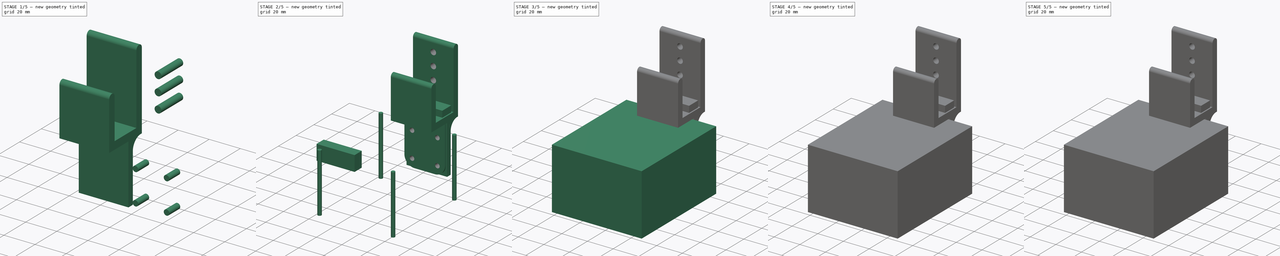
[diagram: build sequence overview — one tinted view per stage of 5, left to right]
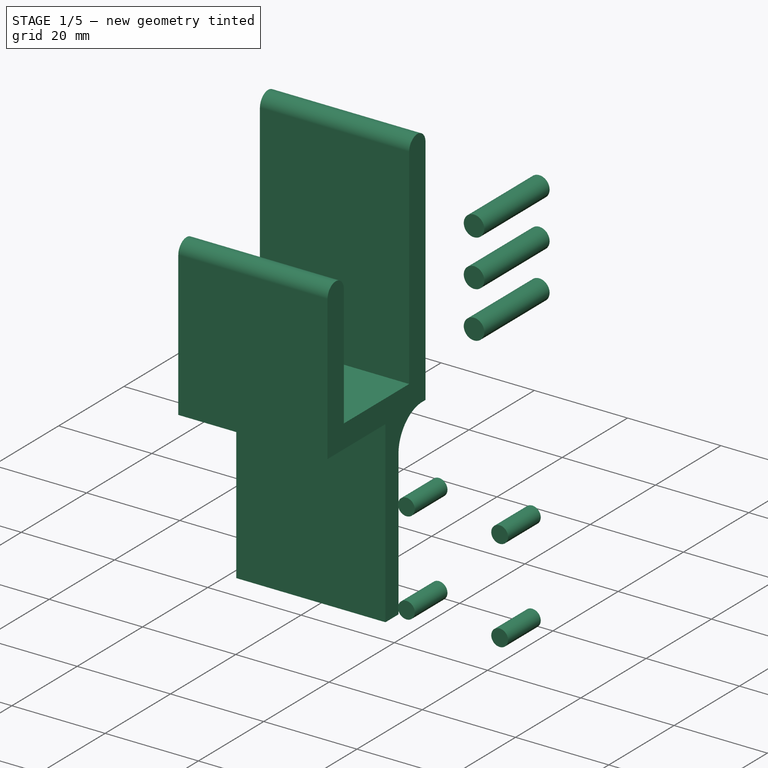
[diagram: stage 1 of 5 — iso view after this stage's code; geometry added in this stage tinted green]
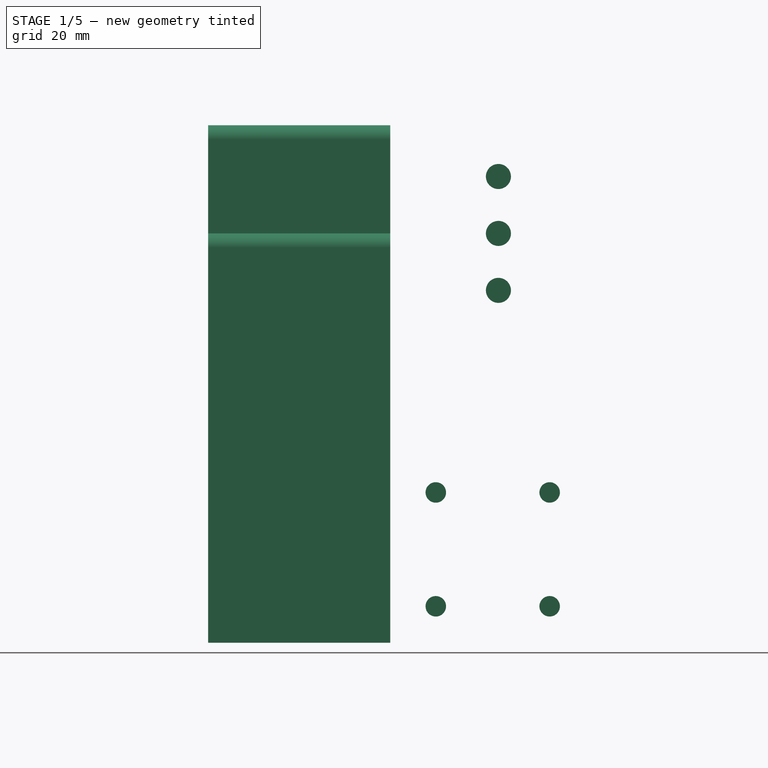
[diagram: stage 1 of 5 — front view after this stage's code; geometry added in this stage tinted green]
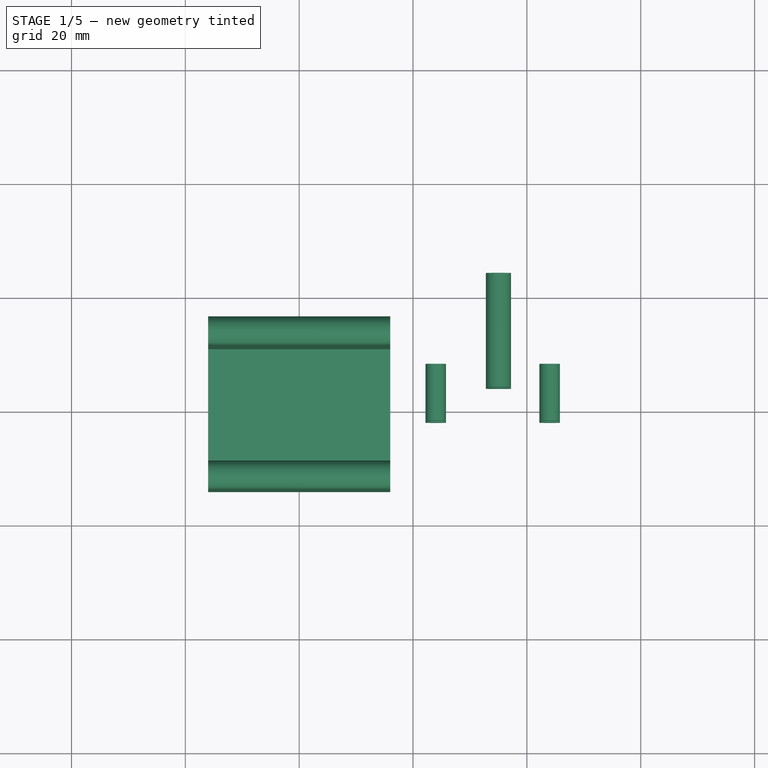
[diagram: stage 1 of 5 — top view after this stage's code; geometry added in this stage tinted green]
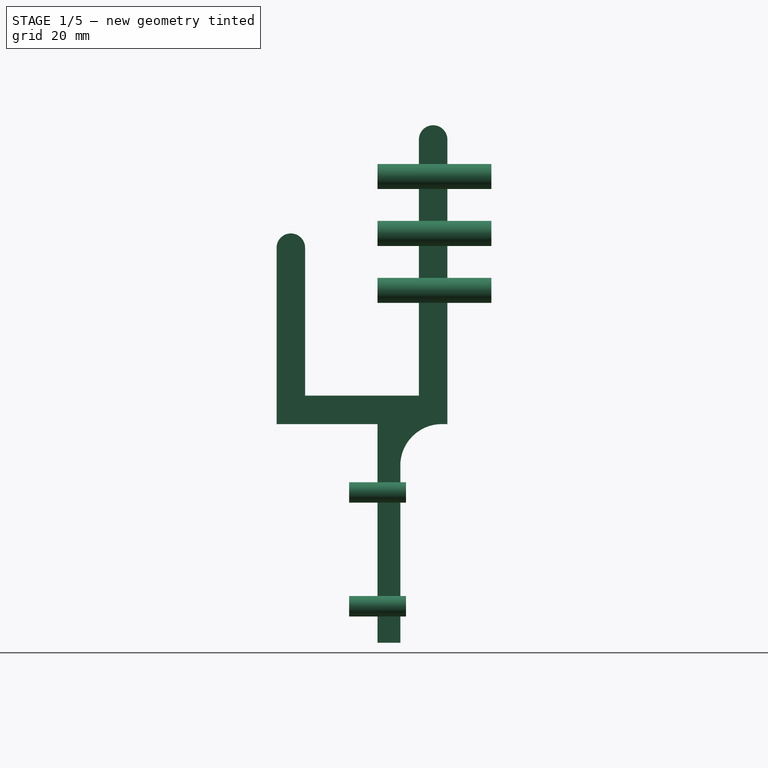
[diagram: stage 1 of 5 — right view after this stage's code; geometry added in this stage tinted green]
FCSTD DOCUMENT  (FreeCAD 0.19R23578 (Git))
Label: box
License: All rights reserved
LicenseURL: http://en.wikipedia.org/wiki/All_rights_reserved
objects: Part::Box×10, Part::Cylinder×10, Part::MultiFuse×9, Part::FeaturePython×8, Part::Cut×6, App::Part×5, Part::Feature×4, PartDesign::ShapeBinder×3, Sketcher::SketchObject×3, PartDesign::Pad×3, PartDesign::Body×3, Part::Fillet×1
note: 56 computed .brp shape members not serialized (recipe doc carries the construction recipe); baked Part::Feature solids carry a one-line shape summary decoded from their .brp

FEATURE [Part::Feature] Part003001  label="btn top cover plate"
  Placement = pos=(51.8,5,1) rot=(0,1,0;3.14159rad)
  shape: bbox 38.8 x 27 x 6.5 mm, 25 faces (baked)
FEATURE [Part::Feature] Cut001001  label="esp attachment"
  Placement = pos=(61,38.5,8) rot=(0,0,1;3.14159rad)
  shape: bbox 58 x 5 x 37.5 mm, 20 faces, 2 solids (baked)
FEATURE [Part::Feature] Part001001  label="back part001"
  shape: bbox 44 x 40 x 10 mm, 66 faces (baked)
FEATURE [Part::Box] Box  label="face plate"
  AttacherType = Attacher::AttachEngine3D
  Height = 2
  Length = 68
  Width = 79
FEATURE [Part::Box] Box005  label="back external box"
  AttacherType = Attacher::AttachEngine3D
  Height = 47.5
  Length = 70
  Placement = pos=(-1,-1,0) rot=(0,0,1;0rad)
  Width = 83
  expr: Length = <<face plate>>.Length + 2mm
  expr: Width = <<face plate>>.Width + 4mm
  expr: .Placement.Base.x = -(Length - <<face plate>>.Length) / 2
  expr: .Placement.Base.y = -(Width - <<face plate>>.Width) / 2 + 1mm
  expr: Height = <<back internal box>>.Height + 1mm
FEATURE [App::Part] Part003003  label="face part"
  Group = -> [Fusion002]
  Origin = -> Origin004
FEATURE [Part::Box] Box006  label="back internal box"
  AttacherType = Attacher::AttachEngine3D
  Height = 46.5
  Length = 68
  Width = 79
  expr: Width = <<face plate>>.Width
  expr: Length = <<face plate>>.Length
FEATURE [PartDesign::ShapeBinder] ShapeBinder002
  Support = -> [Box005]
  TraceSupport = false
FEATURE [Sketcher::SketchObject] Sketch002
  MapMode = 5
  Placement = pos=(0,0,0) rot=(0.57735,0.57735,0.57735;2.0944rad)
  Support = -> [YZ_Plane007]
  expr: Constraints[31] = <<back external box>>.Height + 0.5mm
  expr: Constraints[32] = <<back external box>>.Width
  sketch-geometry (13):
    g0: LineSegment StartX=65.2671 StartY=48 StartZ=0 EndX=83 EndY=48 EndZ=0
    g1: LineSegment StartX=83 StartY=48 StartZ=0 EndX=83 EndY=9.6 EndZ=0
    g2: LineSegment StartX=83 StartY=9.6 StartZ=0 EndX=87 EndY=9.6 EndZ=0
    g3: LineSegment StartX=87 StartY=9.6 StartZ=0 EndX=87 EndY=40.7196 EndZ=0
    g4: LineSegment StartX=94.2804 StartY=48 StartZ=0 EndX=95.2671 EndY=48 EndZ=0
    g5: LineSegment StartX=95.2671 StartY=48 StartZ=0 EndX=95.2671 EndY=98 EndZ=0
    g6: LineSegment StartX=90.2671 StartY=98 StartZ=0 EndX=90.2671 EndY=53 EndZ=0
    g7: LineSegment StartX=90.2671 StartY=53 StartZ=0 EndX=70.2671 EndY=53 EndZ=0
    g8: LineSegment StartX=70.2671 StartY=53 StartZ=0 EndX=70.2671 EndY=79 EndZ=0
    g9: LineSegment StartX=65.2671 StartY=79 StartZ=0 EndX=65.2671 EndY=48 EndZ=0
    g10: ArcOfCircle CenterX=67.7671 CenterY=79 CenterZ=0 NormalX=0 NormalY=0 NormalZ=1 AngleXU=0 Radius=2.5 StartAngle=1e-16 EndAngle=3.14159
    g11: ArcOfCircle CenterX=92.7671 CenterY=98 CenterZ=0 NormalX=0 NormalY=0 NormalZ=1 AngleXU=0 Radius=2.5 StartAngle=-9e-16 EndAngle=3.14159
    g12: ArcOfCircle CenterX=94.2804 CenterY=40.7196 CenterZ=0 NormalX=0 NormalY=0 NormalZ=1 AngleXU=0 Radius=7.28037 StartAngle=1.5708 EndAngle=3.14159
  constraints (33):
    c: Horizontal(g0)
    c: Coincident(g2,g1)
    c: Horizontal(g2)
    c: Coincident(g0,g1)
    c: Tangent(g0,g4)
    c: Coincident(g5,g4)
    c: Vertical(g5)
    c: Vertical(g6)
    c: Coincident(g7,g6)
    c: Horizontal(g7)
    c: Vertical(g8)
    c: Coincident(g9,g0)
    c: Vertical(g9)
    c: Tangent(g10,g9) = -1.5708
    c: Tangent(g10,g8) = -1.5708
    c: Tangent(g11,g5) = -1.5708
    c: Tangent(g11,g6) = -1.5708
    c: DistanceX(g7,g7) = 20
    c: DistanceY(g8,g8) = 26
    c: Coincident(g8,g7)
    c: DistanceY(g6,g6) = 45
    c: Vertical(g3)
    c: Coincident(g2,g3)
    c: Vertical(g1)
    c: DistanceX(g2,g2) = 4
    c: DistanceY(g4,g6) = 5
    c: DistanceX(g9,g8) = 5
    c: DistanceX(g6,g5) = 5
    c: Tangent(g4,g12) = 1.5708
    c: Tangent(g3,g12) = 1.5708
    c: DistanceY(g1,g1) = 38.4
    c: DistanceY(g-1,g4) = 48
    c: DistanceX(g-1,g0) = 83
FEATURE [PartDesign::Pad] Pad002
  Direction = (1,1,1)
  Length = 32
  Length2 = 100
  Midplane = true
  Placement = pos=(0,0,0) rot=(0.57735,0.57735,0.57735;2.0944rad)
  Profile = -> Sketch002
  Type = 0
FEATURE [PartDesign::Body] Body002
  Group = -> [ShapeBinder002,Sketch002,Pad002]
  Origin = -> Origin007
  Placement = pos=(35,0,0) rot=(0,0,1;0rad)
  Tip = -> Pad002
  expr: .Placement.Base.x = <<back external box>>.Length / 2
FEATURE [Part::Cylinder] Cylinder008  label="top bolt hole001"
  Angle = 360
  AttacherType = Attacher::AttachEngine3D
  Height = 10
  Radius = 1.8
FEATURE [Part::FeaturePython] Array005  label="top bolt hole array001"  # Draft array (typed FeaturePython)
  Angle = 360
  ArrayType = 0
  Axis = (0,0,1)
  Base = -> Cylinder008
  Center = (0,0,0)
  Count = 4
  ExpandArray = false
  Fuse = false
  IntervalAxis = (0,0,0)
  IntervalX = (20,0,0)
  IntervalY = (0,20,0)
  IntervalZ = (0,0,100)
  NumberCircles = 3
  NumberPolar = 5
  NumberX = 2
  NumberY = 2
  NumberZ = 1
  Placement = pos=(24,88,16) rot=(1,0,0;1.5708rad)
  PlacementList = 4 placements: [(0,0,0),(0,20,0),(20,0,0),(20,20,0)]
  RadialDistance = 50
  ScaleList = (4) [(1,1,1),(1,1,1),(1,1,1),(1,1,1)]
  Symmetry = 1
  TangentialDistance = 25
FEATURE [Part::Cylinder] Cylinder009  label="holder insert hole"
  Angle = 360
  AttacherType = Attacher::AttachEngine3D
  Height = 20
  Placement = pos=(0,0,0) rot=(1,0,0;1.5708rad)
  Radius = 2.2
FEATURE [Part::FeaturePython] Array006  label="holder insert hole array"  # Draft array (typed FeaturePython)
  Angle = 360
  ArrayType = 0
  Axis = (0,0,1)
  Base = -> Cylinder009
  Center = (0,0,0)
  Count = 3
  ExpandArray = false
  Fuse = false
  IntervalAxis = (0,0,0)
  IntervalX = (100,0,0)
  IntervalY = (0,100,0)
  IntervalZ = (0,0,10)
  NumberCircles = 3
  NumberPolar = 5
  NumberX = 1
  NumberY = 1
  NumberZ = 3
  Placement = pos=(35,103,71.5) rot=(0,0,1;0rad)
  PlacementList = 3 placements: arithmetic series from (0,0,0) step (0,0,10) to (0,0,20)
  RadialDistance = 50
  ScaleList = (3) [(1,1,1),(1,1,1),(1,1,1)]
  Symmetry = 1
  TangentialDistance = 25
  expr: .Placement.Base.z = <<back internal box>>.Height + 25mm
  expr: .Placement.Base.y = <<back external box>>.Width + 20mm
  expr: .Placement.Base.x = <<back external box>>.Length / 2
FEATURE [Part::MultiFuse] Fusion008  label="holder hole fusion"
  Shapes = -> [Array005,Array006]
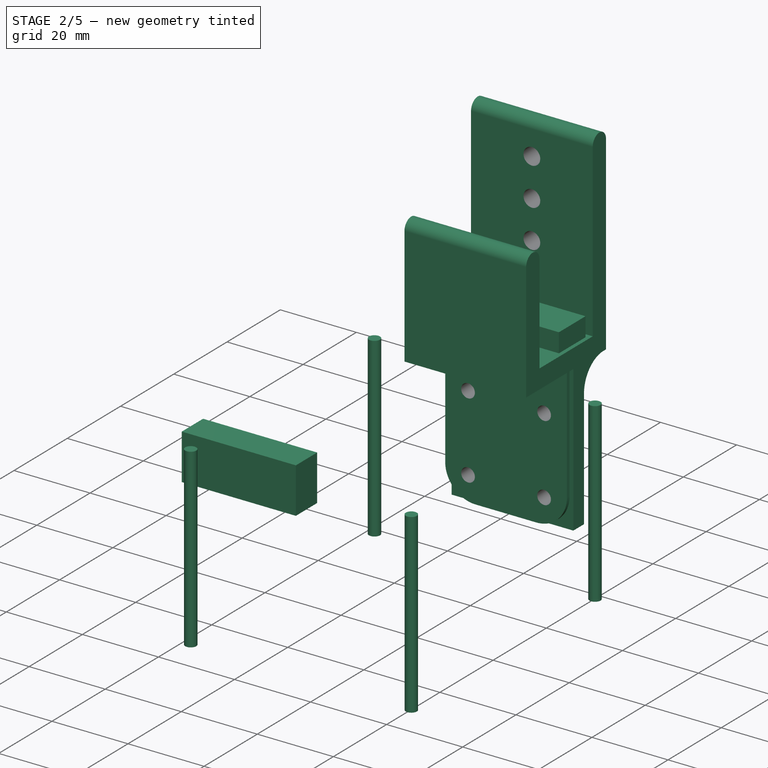
[diagram: stage 2 of 5 — iso view after this stage's code; geometry added in this stage tinted green]
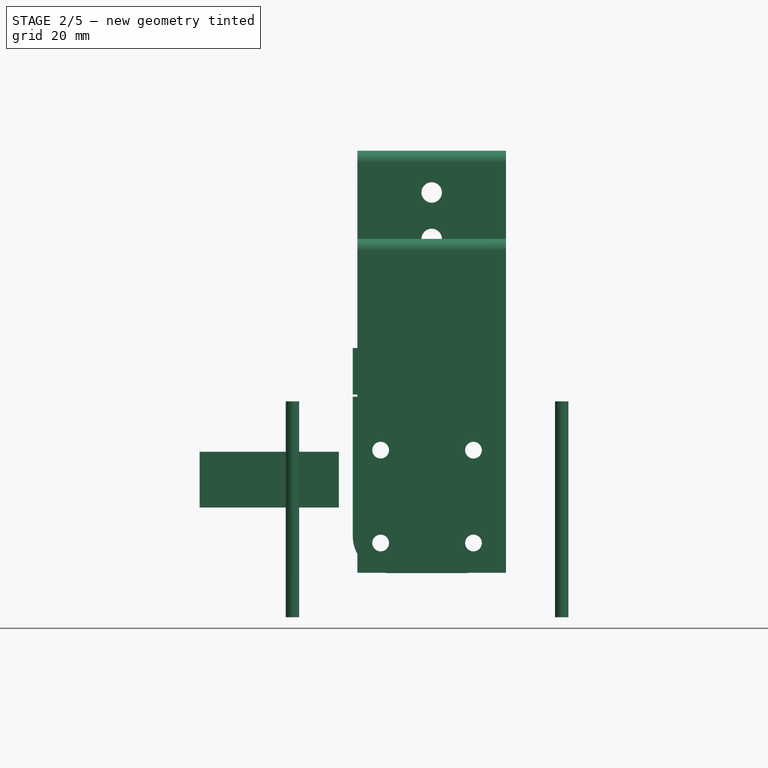
[diagram: stage 2 of 5 — front view after this stage's code; geometry added in this stage tinted green]
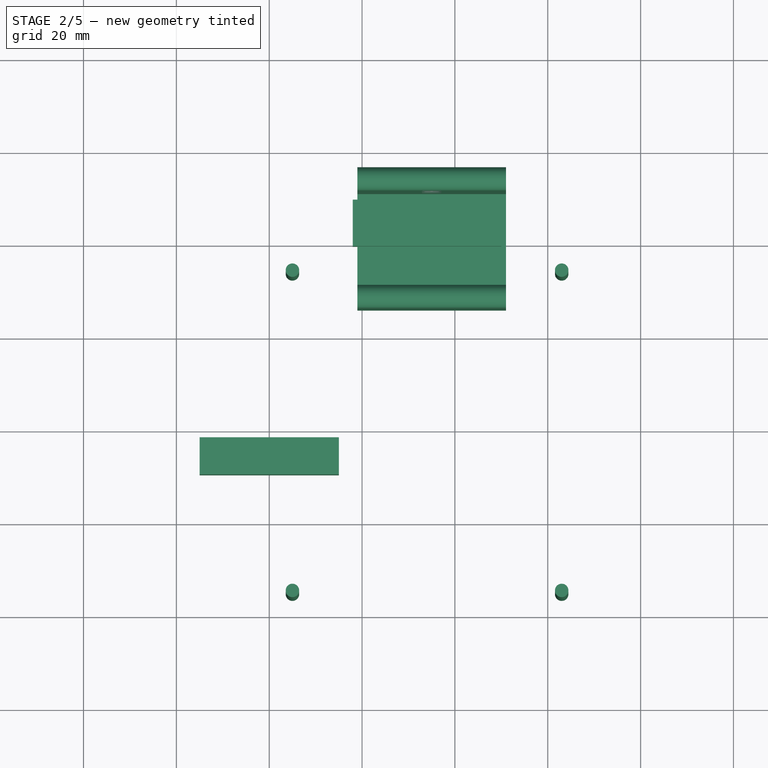
[diagram: stage 2 of 5 — top view after this stage's code; geometry added in this stage tinted green]
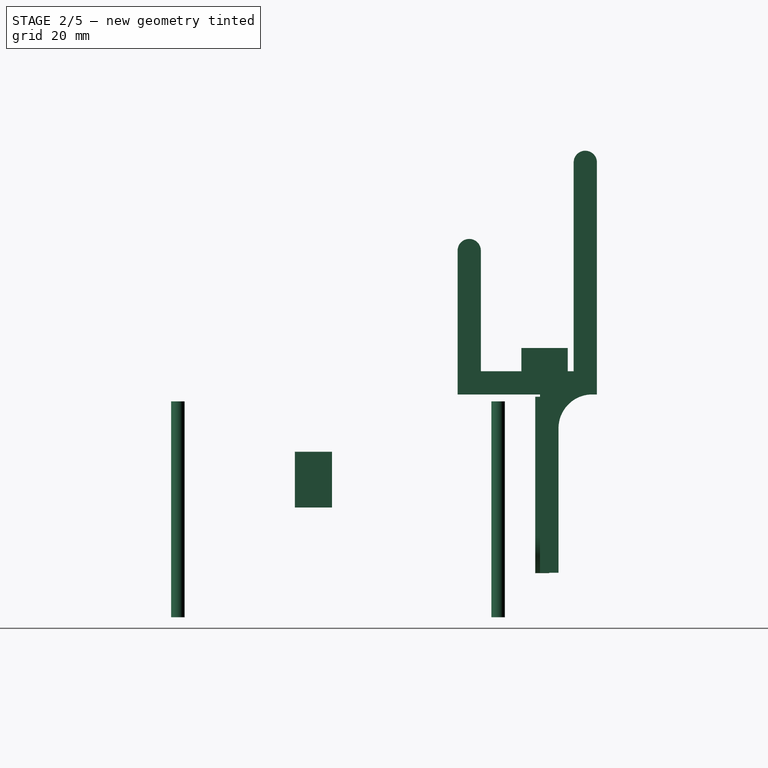
[diagram: stage 2 of 5 — right view after this stage's code; geometry added in this stage tinted green]
FEATURE [Part::Cylinder] Cylinder006  label="screw hole002"
  Angle = 360
  AttacherType = Attacher::AttachEngine3D
  Height = 46.5
  Placement = pos=(5,5,0) rot=(0,0,1;0rad)
  Radius = 1.45
  expr: Height = <<back internal box>>.Height
FEATURE [Part::FeaturePython] Array003  label="screw hole array"  # Draft array (typed FeaturePython)
  Angle = 360
  ArrayType = 0
  Axis = (0,0,1)
  Base = -> Cylinder006
  Center = (0,0,0)
  Count = 4
  ExpandArray = false
  Fuse = false
  IntervalAxis = (0,0,0)
  IntervalX = (58,0,0)
  IntervalY = (0,69,0)
  IntervalZ = (0,0,100)
  NumberCircles = 3
  NumberPolar = 5
  NumberX = 2
  NumberY = 2
  NumberZ = 1
  PlacementList = 4 placements: [(5,5,0),(5,74,0),(63,5,0),(63,74,0)]
  RadialDistance = 50
  ScaleList = (4) [(1,1,1),(1,1,1),(1,1,1),(1,1,1)]
  Symmetry = 1
  TangentialDistance = 25
  expr: .IntervalX.x = <<face plate>>.Length - <<screw hole002>>.Placement.Base.x * 2
  expr: .IntervalY.y = <<face plate>>.Width - <<screw hole002>>.Placement.Base.y * 2
FEATURE [Part::Box] Box020  label="micro usb hole"
  AttacherType = Attacher::AttachEngine3D
  Height = 8
  Length = 12
  Placement = pos=(-15,30.2,23.65) rot=(0.57735,0.57735,0.57735;4.18879rad)
  Width = 30
FEATURE [App::Part] Part003004  label="back part"
  Group = -> [Fusion007]
  Origin = -> Origin005
FEATURE [Part::Box] Box021  label="holder main cube"
  AttacherType = Attacher::AttachEngine3D
  Height = 38
  Length = 32
  Placement = pos=(18,82,9.5) rot=(0,0,1;0rad)
  Width = 3
  expr: .Placement.Base.z = <<back external box>>.Height - Height
  expr: .Placement.Base.x = (<<back internal box>>.Length - Length) / 2
FEATURE [Part::Cylinder] Cylinder007  label="top bolt hole"
  Angle = 360
  AttacherType = Attacher::AttachEngine3D
  Height = 10
  Radius = 1.8
FEATURE [Part::FeaturePython] Array004  label="top bolt hole array"  # Draft array (typed FeaturePython)
  Angle = 360
  ArrayType = 0
  Axis = (0,0,1)
  Base = -> Cylinder007
  Center = (0,0,0)
  Count = 4
  ExpandArray = false
  Fuse = false
  IntervalAxis = (0,0,0)
  IntervalX = (20,0,0)
  IntervalY = (0,20,0)
  IntervalZ = (0,0,100)
  NumberCircles = 3
  NumberPolar = 5
  NumberX = 2
  NumberY = 2
  NumberZ = 1
  Placement = pos=(24,88,16) rot=(1,0,0;1.5708rad)
  PlacementList = 4 placements: [(0,0,0),(0,20,0),(20,0,0),(20,20,0)]
  RadialDistance = 50
  ScaleList = (4) [(1,1,1),(1,1,1),(1,1,1),(1,1,1)]
  Symmetry = 1
  TangentialDistance = 25
FEATURE [Part::Fillet] Fillet
  Base = -> Box021
  Edges = 2 edges r=8: [Edge4,Edge8]
FEATURE [Part::Cut] Cut001005
  Base = -> Fillet
  Tool = -> Array004
FEATURE [Part::Box] Box022  label="Cube005"
  AttacherType = Attacher::AttachEngine3D
  Height = 10
  Length = 32
  Placement = pos=(18,79,48) rot=(0,0,1;0rad)
  Width = 10
  expr: .Placement.Base.x = <<holder main cube>>.Placement.Base.x
  expr: Length = <<holder main cube>>.Length
FEATURE [Part::Cut] Cut001006  label="holder cut"
  Base = -> Body002
  Tool = -> Fusion008
FEATURE [App::Part] Part003005  label="holder part"
  Group = -> [Body002,Cut001006,Array005,Cylinder008,Array006]
  Origin = -> Origin006
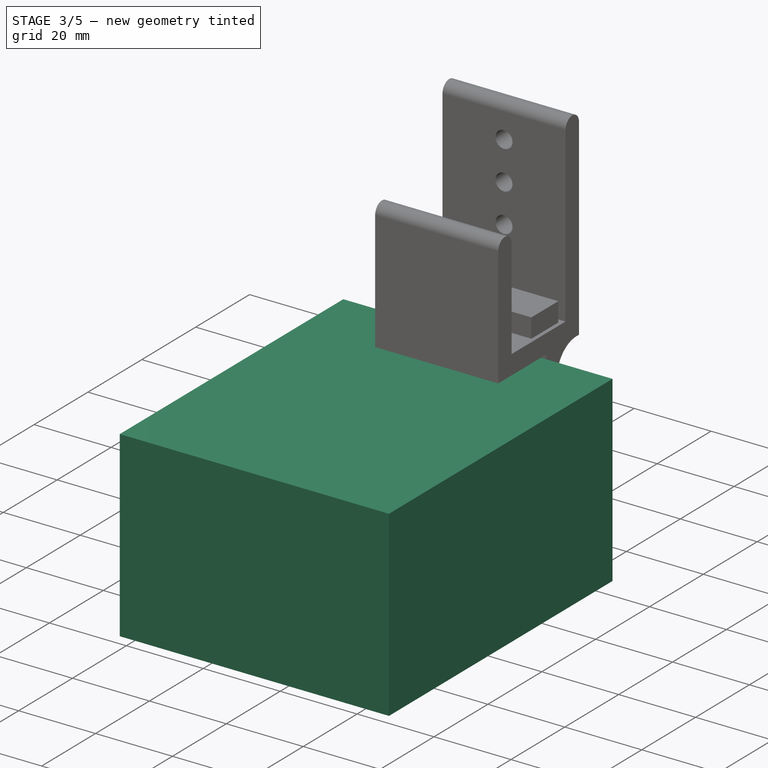
[diagram: stage 3 of 5 — iso view after this stage's code; geometry added in this stage tinted green]
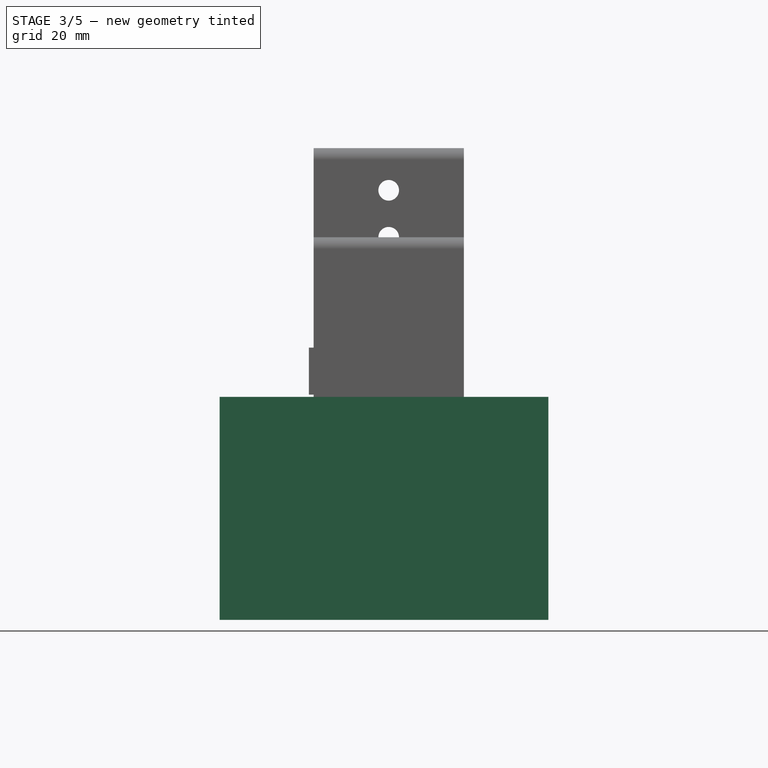
[diagram: stage 3 of 5 — front view after this stage's code; geometry added in this stage tinted green]
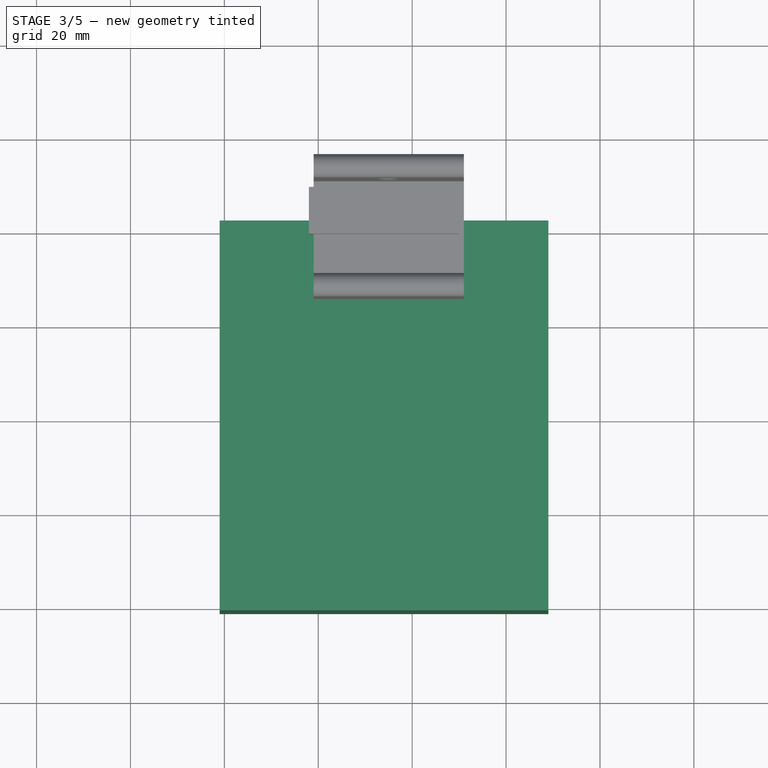
[diagram: stage 3 of 5 — top view after this stage's code; geometry added in this stage tinted green]
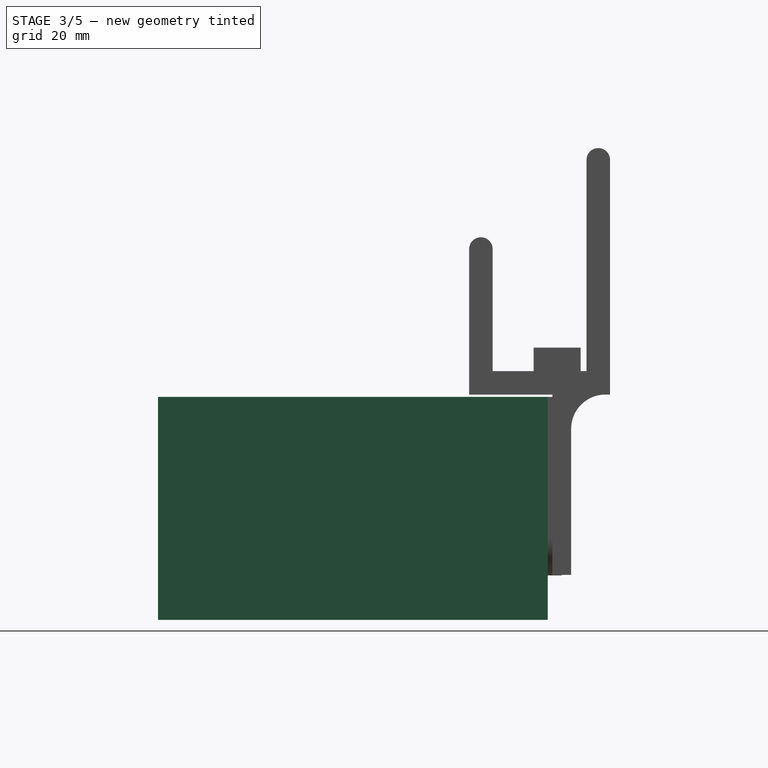
[diagram: stage 3 of 5 — right view after this stage's code; geometry added in this stage tinted green]
FEATURE [Part::Cylinder] Cylinder001  label="bolt hole"
  Angle = 360
  AttacherType = Attacher::AttachEngine3D
  Height = 10
  Placement = pos=(5,5,0) rot=(0,0,1;0rad)
  Radius = 1.8
FEATURE [Part::Cylinder] Cylinder004  label="top insert hole"
  Angle = 360
  AttacherType = Attacher::AttachEngine3D
  Height = 10
  Radius = 2.2
FEATURE [Part::FeaturePython] Array001  label="top insert hole array"  # Draft array (typed FeaturePython)
  Angle = 360
  ArrayType = 0
  Axis = (0,0,1)
  Base = -> Cylinder004
  Center = (0,0,0)
  Count = 4
  ExpandArray = false
  Fuse = false
  IntervalAxis = (0,0,0)
  IntervalX = (20,0,0)
  IntervalY = (0,20,0)
  IntervalZ = (0,0,100)
  NumberCircles = 3
  NumberPolar = 5
  NumberX = 2
  NumberY = 2
  NumberZ = 1
  Placement = pos=(24,88,16) rot=(1,0,0;1.5708rad)
  PlacementList = 4 placements: [(0,0,0),(0,20,0),(20,0,0),(20,20,0)]
  RadialDistance = 50
  ScaleList = (4) [(1,1,1),(1,1,1),(1,1,1),(1,1,1)]
  Symmetry = 1
  TangentialDistance = 25
FEATURE [Part::Cylinder] Cylinder005  label="stand"
  Angle = 360
  AttacherType = Attacher::AttachEngine3D
  Height = 44.5
  Placement = pos=(5,5,2.5) rot=(0,0,1;0rad)
  Radius = 6
  expr: Height = <<back external box>>.Height - <<face plate>>.Height - 1mm
  expr: .Placement.Base.z = <<face plate>>.Height + 0.5mm
FEATURE [Part::FeaturePython] Array002  label="bolt stand array"  # Draft array (typed FeaturePython)
  Angle = 360
  ArrayType = 0
  Axis = (0,0,1)
  Base = -> Cylinder005
  Center = (0,0,0)
  Count = 4
  ExpandArray = false
  Fuse = false
  IntervalAxis = (0,0,0)
  IntervalX = (58,0,0)
  IntervalY = (0,69,0)
  IntervalZ = (0,0,100)
  NumberCircles = 3
  NumberPolar = 5
  NumberX = 2
  NumberY = 2
  NumberZ = 1
  PlacementList = 4 placements: [(5,5,2.5),(5,74,2.5),(63,5,2.5),(63,74,2.5)]
  RadialDistance = 50
  ScaleList = (4) [(1,1,1),(1,1,1),(1,1,1),(1,1,1)]
  Symmetry = 1
  TangentialDistance = 25
  expr: .IntervalX.x = <<face plate>>.Length - <<bolt hole>>.Placement.Base.x * 2
  expr: .IntervalY.y = <<face plate>>.Width - <<bolt hole>>.Placement.Base.y * 2
FEATURE [Part::Cut] Cut001004  label="bolt stand fusion"
  Base = -> Array002
  Tool = -> Array003
FEATURE [Part::MultiFuse] Fusion006  label="back box extract fusion"
  Shapes = -> [Box006,Array001,Box020]
FEATURE [Part::Cut] Cut001003  label="back box cut"
  Base = -> Box005
  Tool = -> Fusion006
FEATURE [Part::MultiFuse] Fusion007  label="back box fusion"
  Shapes = -> [Cut001003,Cut001004]
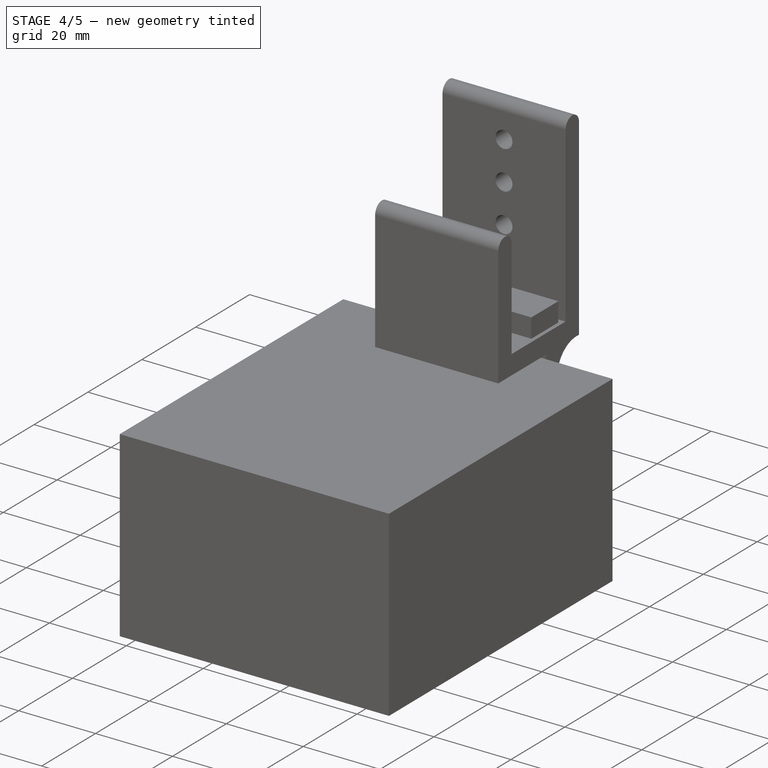
[diagram: stage 4 of 5 — iso view after this stage's code; geometry added in this stage tinted green]
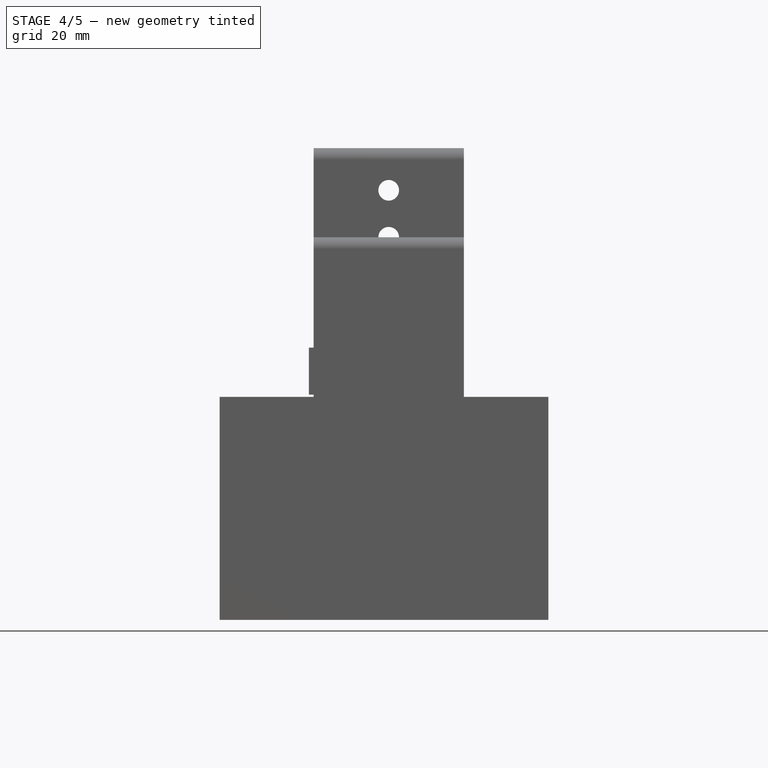
[diagram: stage 4 of 5 — front view after this stage's code; geometry added in this stage tinted green]
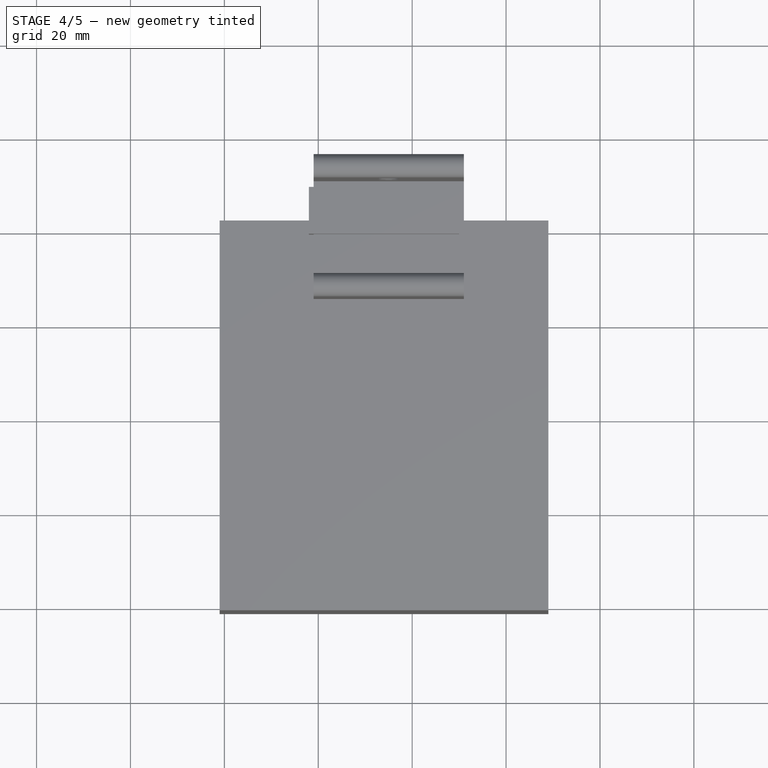
[diagram: stage 4 of 5 — top view after this stage's code; geometry added in this stage tinted green]
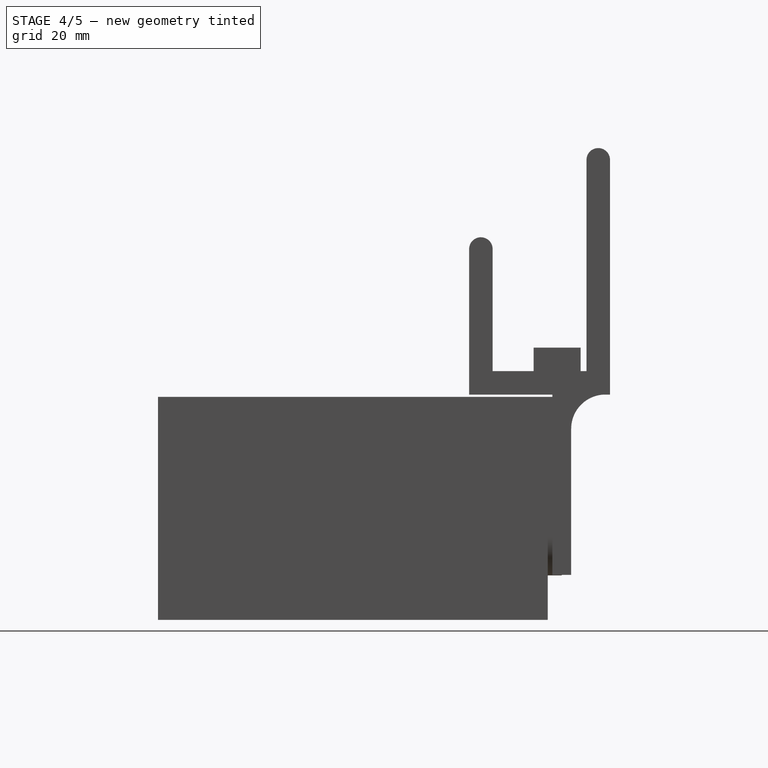
[diagram: stage 4 of 5 — right view after this stage's code; geometry added in this stage tinted green]
FEATURE [Part::Box] Box001  label="Cube"
  AttacherType = Attacher::AttachEngine3D
  Height = 8
  Length = 8
  Placement = pos=(3,32,0) rot=(0,0,1;0rad)
  Width = 8
FEATURE [Part::Box] Box002  label="Cube001"
  AttacherType = Attacher::AttachEngine3D
  Height = 8
  Length = 8
  Placement = pos=(53.5,32,0) rot=(0,0,1;0rad)
  Width = 8
FEATURE [Part::Box] Box003  label="Cube002"
  AttacherType = Attacher::AttachEngine3D
  Height = 10
  Length = 10
  Placement = pos=(19,66,0) rot=(0,0,1;0rad)
  Width = 8
FEATURE [Part::Box] Box004  label="Cube003"
  AttacherType = Attacher::AttachEngine3D
  Height = 10
  Length = 10
  Placement = pos=(19,38,0) rot=(0,0,1;0rad)
  Width = 8
FEATURE [Part::Cylinder] Cylinder002  label="screw hole"
  Angle = 360
  AttacherType = Attacher::AttachEngine3D
  Height = 8
  Placement = pos=(24,71,2) rot=(0,0,1;0rad)
  Radius = 1.45
FEATURE [Part::Cylinder] Cylinder003  label="screw hole001"
  Angle = 360
  AttacherType = Attacher::AttachEngine3D
  Height = 8
  Placement = pos=(24,41,2) rot=(0,0,1;0rad)
  Radius = 1.45
FEATURE [Part::MultiFuse] Fusion003  label="lcd face fusion"
  Shapes = -> [Compound001,Box003,Box004]
FEATURE [Part::MultiFuse] Fusion004  label="lcd face hole fusion"
  Shapes = -> [Cylinder002,Cylinder003]
FEATURE [Part::FeaturePython] Clone  label="esp attachment scaled"  # Draft clone (typed FeaturePython)
  AttacherType = Attacher::AttachEngine3D
  Fuse = false
  Objects = -> [Cut001001]
  Placement = pos=(61,39.75,8) rot=(0,0,1;3.14159rad)
  Scale = (1,1.5,1)
FEATURE [Part::MultiFuse] Fusion005  label="esp attachment fusion"
  Placement = pos=(0,4,0) rot=(0,0,1;0rad)
  Shapes = -> [Box001,Box002,Clone]
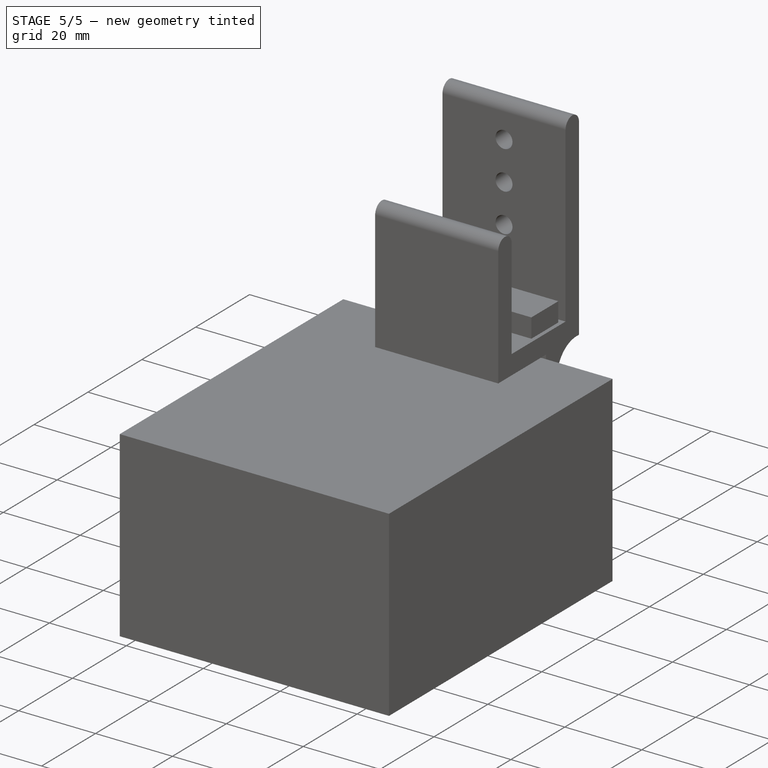
[diagram: stage 5 of 5 — iso view after this stage's code; geometry added in this stage tinted green]
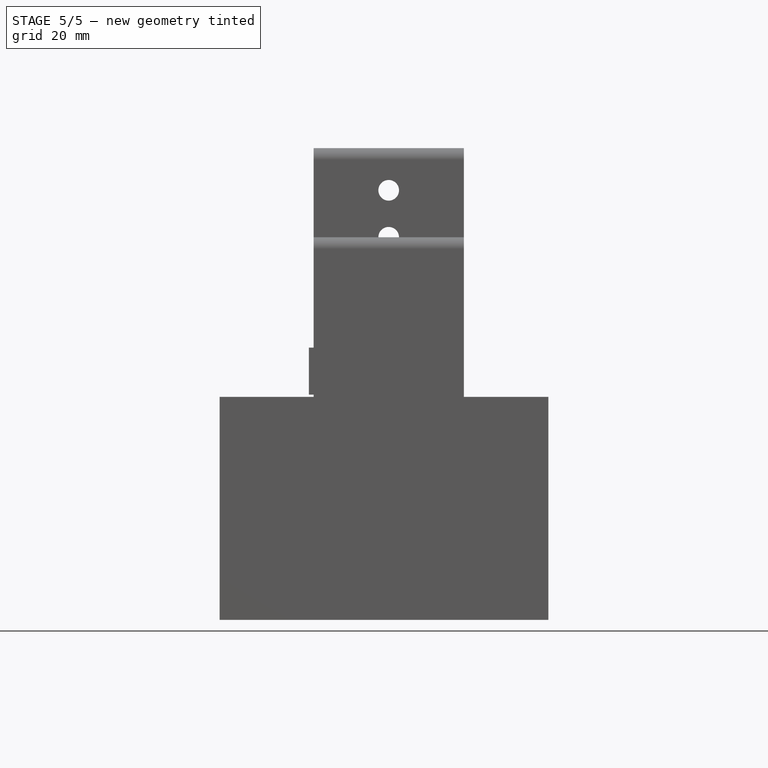
[diagram: stage 5 of 5 — front view after this stage's code; geometry added in this stage tinted green]
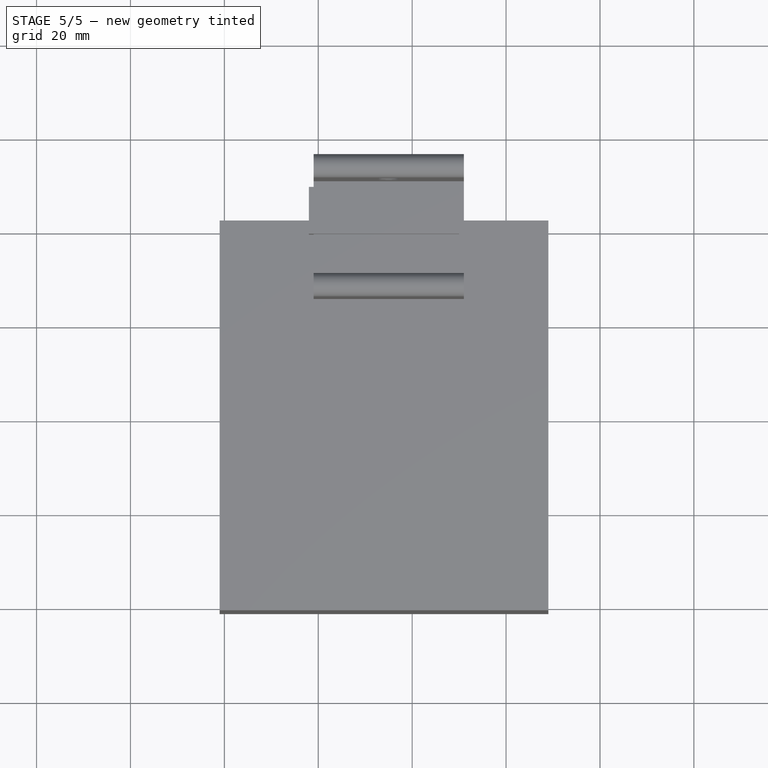
[diagram: stage 5 of 5 — top view after this stage's code; geometry added in this stage tinted green]
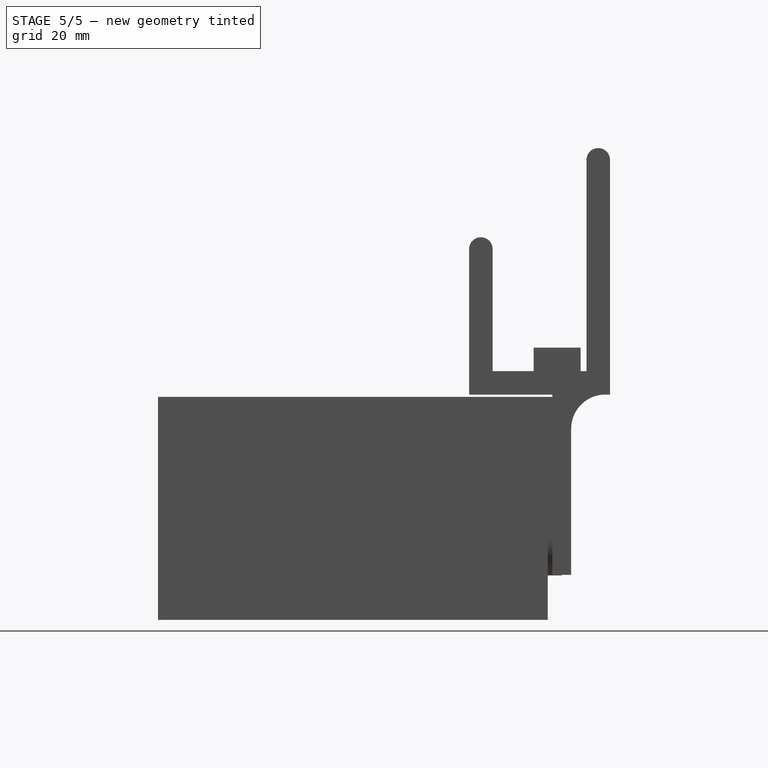
[diagram: stage 5 of 5 — right view after this stage's code; geometry added in this stage tinted green]
FEATURE [PartDesign::ShapeBinder] ShapeBinder
  Support = -> [Part003001]
  TraceSupport = false
FEATURE [Sketcher::SketchObject] Sketch
  ExternalGeometry = -> [ShapeBinder]
  MapMode = 5
  Support = -> [XY_Plane001]
  sketch-geometry (4):
    g0: LineSegment StartX=14.6 StartY=30.4 StartZ=0 EndX=14.6 EndY=3.4 EndZ=0
    g1: LineSegment StartX=53.4 StartY=30.4 StartZ=0 EndX=53.4 EndY=3.4 EndZ=0
    g2: LineSegment StartX=53.4 StartY=30.4 StartZ=0 EndX=14.6 EndY=30.4 EndZ=0
    g3: LineSegment StartX=14.6 StartY=3.4 StartZ=0 EndX=53.4 EndY=3.4 EndZ=0
  constraints (8):
    c: Coincident(g0,g-3)
    c: Coincident(g0,g-4)
    c: Coincident(g1,g-3)
    c: Coincident(g1,g-4)
    c: Coincident(g2,g1)
    c: Coincident(g2,g0)
    c: Coincident(g3,g0)
    c: Coincident(g3,g1)
FEATURE [PartDesign::Pad] Pad
  Direction = (1,1,1)
  Length = 2
  Length2 = 100
  Profile = -> Sketch
  Type = 0
  expr: Length = <<face plate>>.Height
FEATURE [PartDesign::Body] Body  label="btn top cover body"
  Group = -> [Sketch,ShapeBinder,Pad]
  Origin = -> Origin001
  Tip = -> Pad
FEATURE [App::Part] Part
  Group = -> [Body]
  Origin = -> Origin
FEATURE [Part::Cylinder] Cylinder  label="aud hole"
  Angle = 360
  AttacherType = Attacher::AttachEngine3D
  Height = 10
  Placement = pos=(58,60,0) rot=(0,0,1;0rad)
  Radius = 3.3
FEATURE [Part::FeaturePython] Array  label="bolt hole array"  # Draft array (typed FeaturePython)
  Angle = 360
  ArrayType = 0
  Axis = (0,0,1)
  Base = -> Cylinder001
  Center = (0,0,0)
  Count = 4
  ExpandArray = false
  Fuse = false
  IntervalAxis = (0,0,0)
  IntervalX = (58,0,0)
  IntervalY = (0,69,0)
  IntervalZ = (0,0,100)
  NumberCircles = 3
  NumberPolar = 5
  NumberX = 2
  NumberY = 2
  NumberZ = 1
  PlacementList = 4 placements: [(5,5,0),(5,74,0),(63,5,0),(63,74,0)]
  RadialDistance = 50
  ScaleList = (4) [(1,1,1),(1,1,1),(1,1,1),(1,1,1)]
  Symmetry = 1
  TangentialDistance = 25
  expr: .IntervalY.y = <<face plate>>.Width - <<bolt hole>>.Placement.Base.y * 2
  expr: .IntervalX.x = <<face plate>>.Length - <<bolt hole>>.Placement.Base.x * 2
FEATURE [Part::Feature] Compound001  label="lcd face"
  Placement = pos=(23,56,0) rot=(0,0,1;0rad)
  shape: bbox 44 x 40 x 10 mm, 65 faces, 2 solids (baked)
FEATURE [PartDesign::ShapeBinder] ShapeBinder001
  Support = -> [Compound001]
  TraceSupport = false
FEATURE [Sketcher::SketchObject] Sketch001
  ExternalGeometry = -> [ShapeBinder001]
  MapMode = 5
  Support = -> [XY_Plane003]
  sketch-geometry (4):
    g0: LineSegment StartX=3 StartY=64 StartZ=0 EndX=47 EndY=64 EndZ=0
    g1: LineSegment StartX=47 StartY=64 StartZ=0 EndX=47 EndY=48 EndZ=0
    g2: LineSegment StartX=47 StartY=48 StartZ=0 EndX=3 EndY=48 EndZ=0
    g3: LineSegment StartX=3 StartY=48 StartZ=0 EndX=3 EndY=64 EndZ=0
  constraints (8):
    c: Coincident(g-3,g0)
    c: Coincident(g0,g-4)
    c: Coincident(g0,g1)
    c: Coincident(g1,g-4)
    c: Coincident(g1,g2)
    c: Coincident(g2,g-3)
    c: Coincident(g2,g3)
    c: Coincident(g3,g0)
FEATURE [PartDesign::Pad] Pad001
  Direction = (1,1,1)
  Length = 2
  Length2 = 100
  Profile = -> Sketch001
  Type = 0
  expr: Length = <<face plate>>.Height
FEATURE [PartDesign::Body] Body001  label="lcd cover body"
  Group = -> [Sketch001,ShapeBinder001,Pad001]
  Origin = -> Origin003
  Tip = -> Pad001
FEATURE [App::Part] Part003002
  Group = -> [Body001]
  Origin = -> Origin002
FEATURE [Part::MultiFuse] Fusion001  label="face plate hole fusion"
  Shapes = -> [Body,Body001,Cylinder,Array]
FEATURE [Part::Cut] Cut  label="face plate cut"
  Base = -> Box
  Tool = -> Fusion001
FEATURE [Part::Cut] Cut001002  label="lcd face cut"
  Base = -> Fusion003
  Tool = -> Fusion004
FEATURE [Part::MultiFuse] Fusion  label="face fusion"
  Shapes = -> [Part003001,Cut001002,Fusion005]
FEATURE [Part::MultiFuse] Fusion002  label="face plate fusion"
  Shapes = -> [Fusion,Cut]
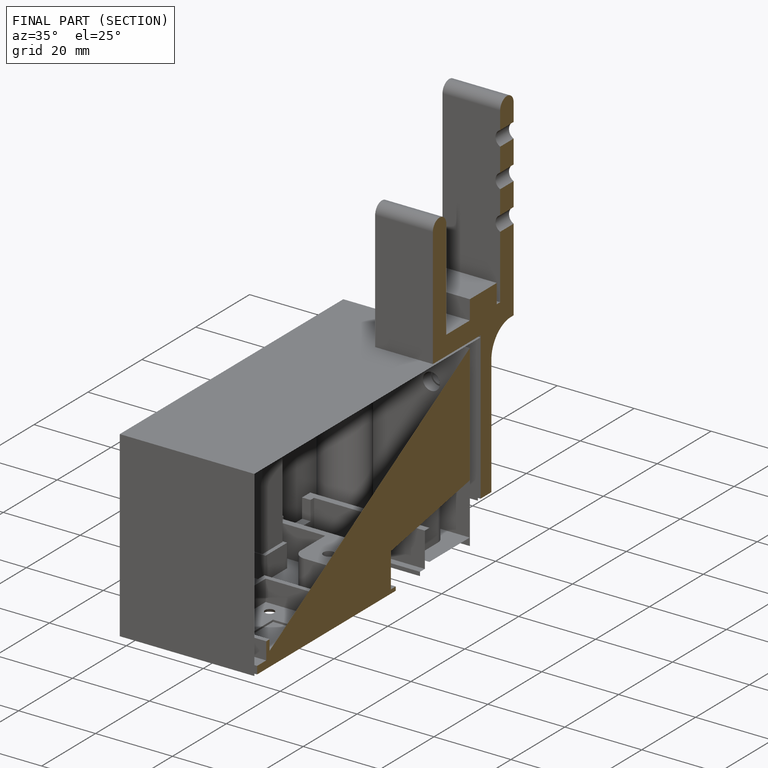
[diagram: finished part — half-section view (interior)]
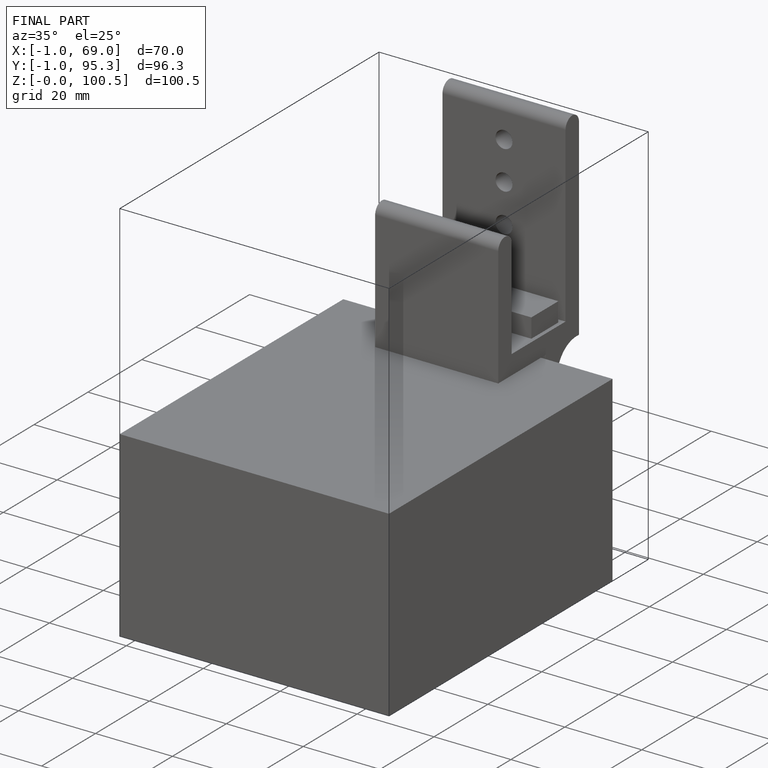
[diagram: finished part — iso view with bounding-box wireframe]
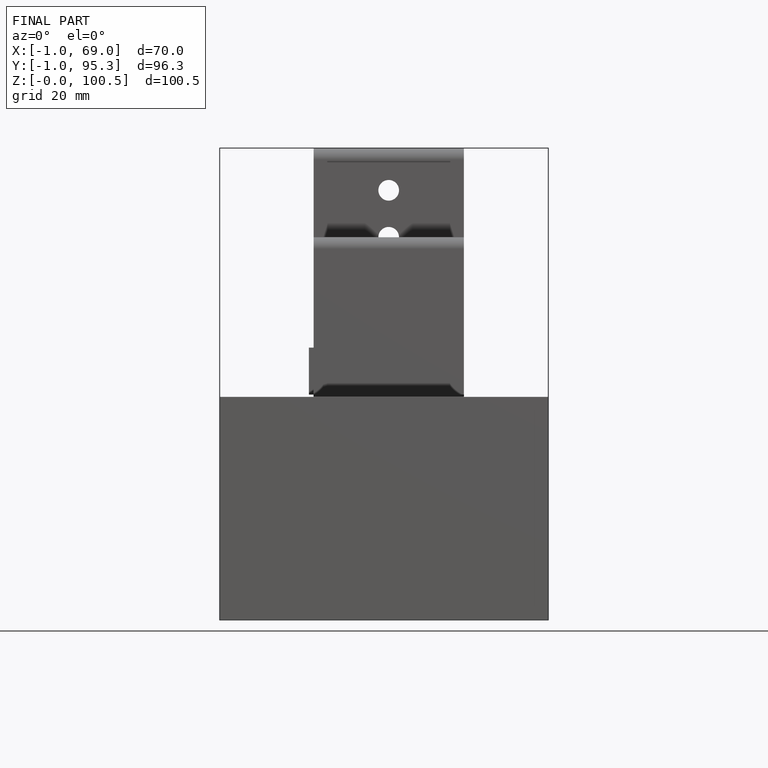
[diagram: finished part — front view with bounding-box wireframe]
